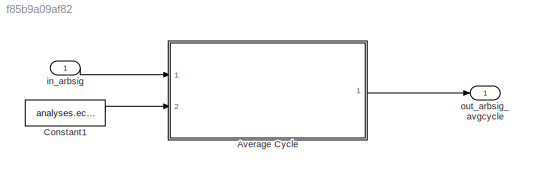
MODEL slx_f85b9a09af82
KIND model
CONFIG AbsTol = auto
CONFIG EnableMultiTasking = off
CONFIG FixedStep = 1/fs
CONFIG MaxStep = 1/fs
CONFIG MinStep = auto
CONFIG RelTol = 1e-3
CONFIG SampleTimeConstraint = Unconstrained
CONFIG Solver = FixedStepDiscrete
CONFIG SolverName = FixedStepDiscrete
CONFIG StartTime = 0.0
CONFIG StopTime = param_sim_time
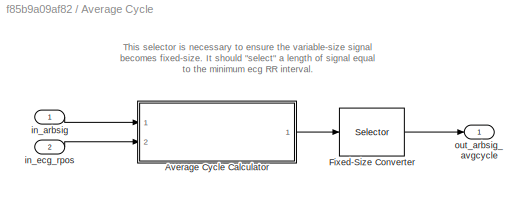
BLOCK [SubSystem] Average Cycle
  Ports = [2, 1]
  RequestExecContextInheritance = off
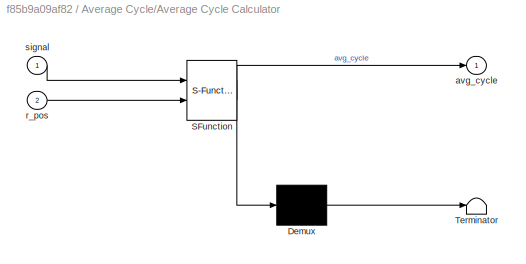
BLOCK [SubSystem] Average Cycle/Average Cycle Calculator
  ErrorFcn = Stateflow.Translate.translate
  PermitHierarchicalResolution = ExplicitOnly
  Ports = [2, 1]
  RequestExecContextInheritance = off
  SFBlockType = MATLAB Function
  TreatAsAtomicUnit = on
BLOCK [Demux] Average Cycle/Average Cycle Calculator/ Demux 
  Outputs = 1
  Ports = [1, 1]
BLOCK [S-Function] Average Cycle/Average Cycle Calculator/ SFunction 
  EnableBusSupport = on
  FunctionName = sf_sfun
  PortCounts = [2 2]
  Ports = [2, 2]
  SFcnIsStateOwnerBlock = off
  SFunctionDeploymentMode = off
  Tag = Stateflow S-Function Offline_SCGAnalysis_AverageCycleCalculator 3
BLOCK [Terminator] Average Cycle/Average Cycle Calculator/ Terminator 
BLOCK [Outport] Average Cycle/Average Cycle Calculator/avg_cycle
  IconDisplay = Port number
BLOCK [Inport] Average Cycle/Average Cycle Calculator/r_pos
  IconDisplay = Port number
  Port = 2
BLOCK [Inport] Average Cycle/Average Cycle Calculator/signal
  IconDisplay = Port number
BLOCK [Selector] Average Cycle/Fixed-Size Converter
  IndexOptions = Index vector (dialog),Index vector (dialog)
  Indices = [1:min(analyses.ecg.RR)],1
  NumberOfDimensions = 2
  OutputSizes = 1,1
  Ports = [1, 1]
BLOCK [Inport] Average Cycle/in_arbsig
  IconDisplay = Port number
BLOCK [Inport] Average Cycle/in_ecg_rpos
  IconDisplay = Port number
  Port = 2
BLOCK [Outport] Average Cycle/out_arbsig_avgcycle
  IconDisplay = Port number
BLOCK [Constant] Constant1
  Value = analyses.ecg.R
BLOCK [Inport] in_arbsig
  IconDisplay = Port number
BLOCK [Outport] out_arbsig_avgcycle
  IconDisplay = Port number
ANNOTATION Average Cycle: This selector is necessary to ensure the variable-size signal becomes fixed-size. It should "select" a length of signal equal to the minimum ecg RR interval.
LINE Average Cycle/Average Cycle Calculator:1 -> Average Cycle/Fixed-Size Converter:1
LINE Average Cycle/Fixed-Size Converter:1 -> Average Cycle/out_arbsig_avgcycle:1
LINE Average Cycle/in_arbsig:1 -> Average Cycle/Average Cycle Calculator:1
LINE Average Cycle/in_ecg_rpos:1 -> Average Cycle/Average Cycle Calculator:2
LINE Average Cycle:1 -> out_arbsig_avgcycle:1
LINE Constant1:1 -> Average Cycle:2
LINE in_arbsig:1 -> Average Cycle:1
CHART Average Cycle/Average Cycle Calculator states=1 transitions=1
  STATE_LABEL 'eML_blk_kernel()'
  STATE_LABEL 'SCRIPT:\nfunction avg_cycle  = avg_cycle_calculator(signal, r_pos)\n% Simulink function to return the average cycle of an arbitraty signal input.\n\n% INPUTS:\n% r_pos = index positions of the R peaks of the ecg.\n% signal = arbitrary input signal.\n\n% OUTPUT:\n% avg_cycle = averaged cycle of arbitrary input signal.\n\n\n% Calculating number of cycles to be considered in averaging\nrr_min = min(diff(r_pos)); ...<+733ch>'
